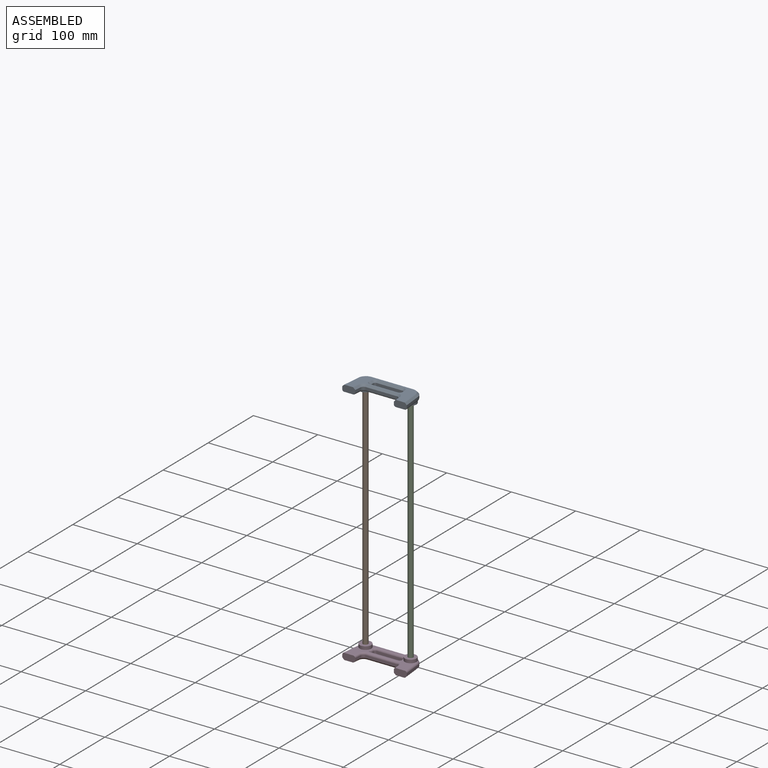
[diagram: assembled view]
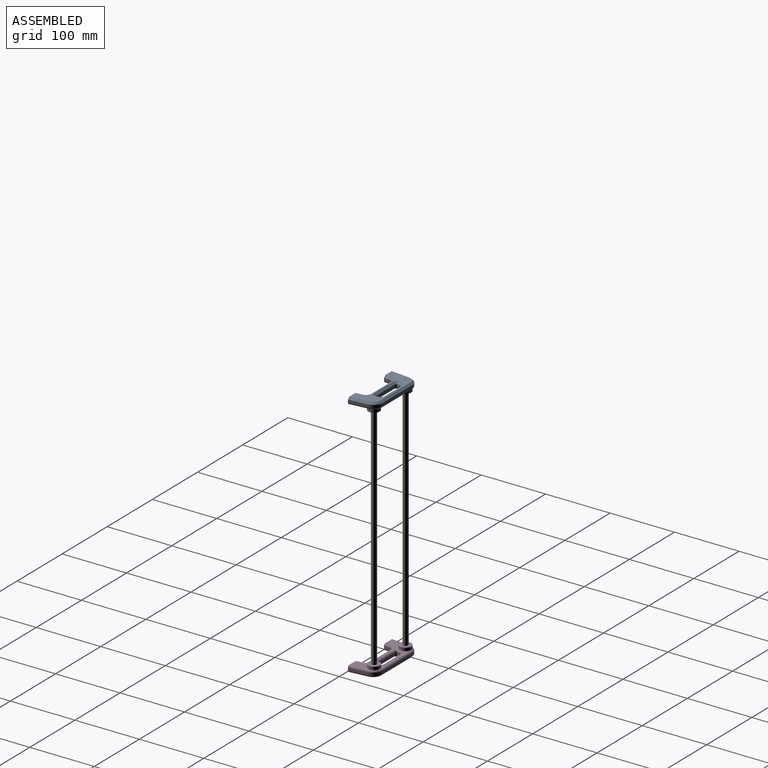
[diagram: assembled view, second angle]
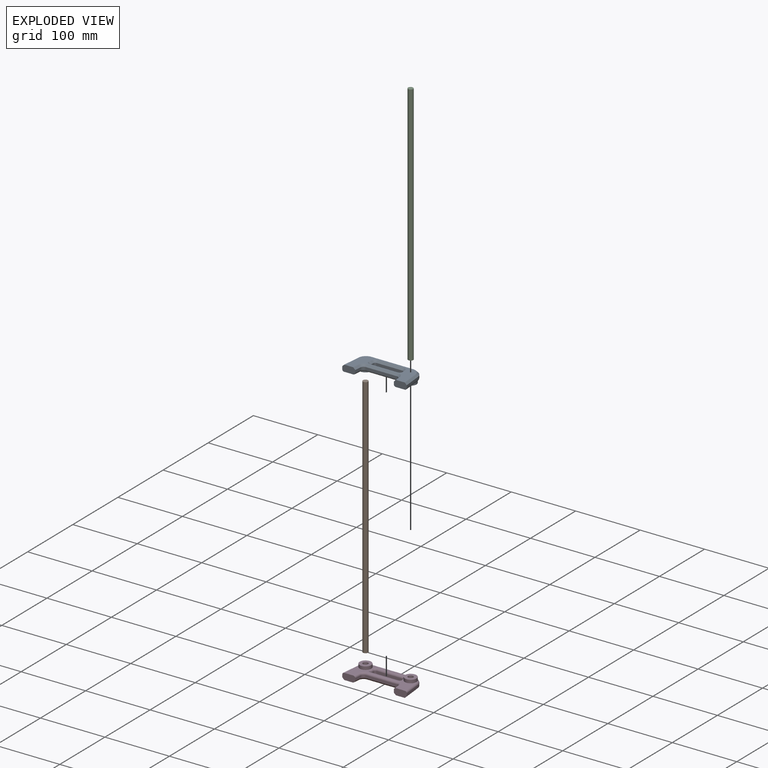
[diagram: exploded view]
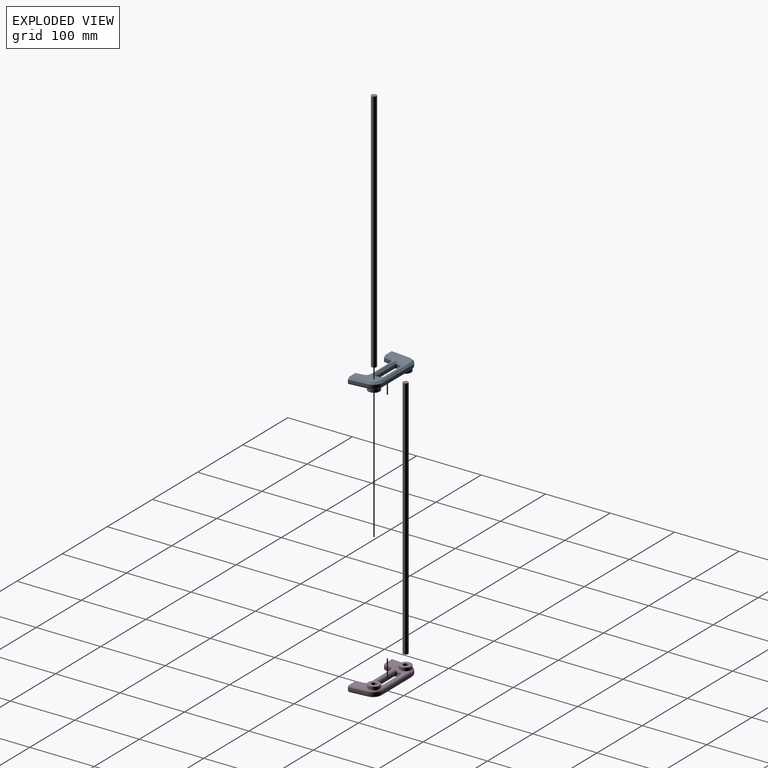
[diagram: exploded view, second angle]
ASSEMBLY  parts=4 mates=3
PART A: 70 faces, bbox 100.1x42.4x15.1 mm
  f0: cylinder r=3mm len=4mm, axis (0,0,-1), area 18.8mm2, adj f1,f21,f31,f53
  f1: plane 39.59x4mm, normal (0,-1,0), area 158.3mm2, adj f0,f2,f30,f52
  f2: cylinder r=3mm len=4mm, axis (0,0,-1), area 18.8mm2, adj f1,f3,f32,f54
  f3: cylinder r=12.21mm len=4.3mm, axis (0,0,-1), area 17.6mm2, adj f2,f4,f34,f56
  f4: cylinder r=2mm len=4mm, axis (0,0,-1), area 15.4mm2, adj f3,f5,f36,f58
  f5: plane 43.4x4mm, normal (0,1,0), area 173.6mm2, adj f4,f6,f37,f59
  f6: cylinder r=2mm len=4mm, axis (0,0,-1), area 15.4mm2, adj f5,f21,f35,f57
  f7: plane 47.99x4mm, normal (0,-1,0), area 192mm2, adj f8,f18,f49,f67
  f8: cylinder r=5mm len=4.98mm, axis (0,0,-1), area 29.5mm2, adj f7,f9,f50,f68
  f9: plane 10.49x4mm, normal (-1,-0.1,0), area 42.2mm2, adj f8,f10,f51,f69
  f10: plane 20.12x10.12mm, normal (0,-1,0), area 187.1mm2, adj f9,f11,f22,f23,f38,f51,f60,f69
  f11: plane 28.46x4mm, normal (1,0.1,0), area 114.4mm2, adj f10,f12,f38,f60
  f12: cylinder r=15mm len=14.93mm, axis (0,0,-1), area 88.4mm2, adj f11,f13,f39,f40,f41,f61
  f13: plane 64.56x4mm, normal (0,1,0), area 258.2mm2, adj f12,f14,f42,f62
  f14: cylinder r=15mm len=14.93mm, axis (0,0,-1), area 88.4mm2, adj f13,f15,f43,f44,f45,f63
  f15: plane 28.46x4mm, normal (-1,0.1,0), area 114.4mm2, adj f14,f16,f46,f64
  f16: plane 20.12x10.12mm, normal (0,-1,0), area 187.1mm2, adj f15,f17,f22,f23,f46,f47,f64,f65
  f17: plane 10.49x4mm, normal (1,-0.1,0), area 42.2mm2, adj f16,f18,f47,f65
  f18: cylinder r=5mm len=4.98mm, axis (0,0,-1), area 29.5mm2, adj f7,f17,f48,f66
  f19: cylinder r=4mm len=12mm, axis (0,0,-1), area 301.6mm2, adj f27,f29
  f20: cylinder r=4mm len=12mm, axis (0,0,-1), area 301.6mm2, adj f25,f28
  f21: cylinder r=12.21mm len=4.3mm, axis (0,0,-1), area 17.6mm2, adj f0,f6,f33,f55
  f22: plane 93.97x39mm, normal (0,0,1), area 1031.5mm2, adj f10,f16,f24,f26,f30,f31,f32,f33
  f23: plane 93.97x39mm, normal (0,0,-1), area 1519.3mm2, adj f10,f16,f52,f53,f54,f55,f56,f57
  f24: cylinder r=9mm len=18mm, axis (0,0,-1), area 282.7mm2, adj f22,f25,f40
  f25: plane 18x18mm, normal (0,0,1), area 204.2mm2, adj f20,f24
  f26: cylinder r=9mm len=18mm, axis (0,0,-1), area 282.7mm2, adj f22,f27,f44
  f27: plane 18x18mm, normal (0,0,1), area 204.2mm2, adj f19,f26
  f28: plane 8x8mm, normal (0,0,1), area 50.3mm2, adj f20
  f29: plane 8x8mm, normal (0,0,1), area 50.3mm2, adj f19
  f30: cylinder r=3mm len=39.59mm, axis (-1,0,0), area 186.5mm2, adj f1,f22,f31,f32
  f31: torus R=6mm, axis (0,0,1), area 30.3mm2, adj f0,f22,f30,f33
  f32: torus R=6mm, axis (0,0,1), area 30.3mm2, adj f2,f22,f30,f34
  f33: torus R=9.21mm, axis (0,0,1), area 18.8mm2, adj f21,f22,f31,f35
  f34: torus R=9.21mm, axis (0,0,1), area 18.8mm2, adj f3,f22,f32,f36
  f35: torus R=5mm, axis (0,0,1), area 28.1mm2, adj f6,f22,f33,f37
  f36: torus R=5mm, axis (0,0,1), area 28.1mm2, adj f4,f22,f34,f37
  f37: cylinder r=3mm len=43.4mm, axis (1,0,0), area 204.5mm2, adj f5,f22,f35,f36
  f38: cylinder r=3mm len=28.76mm, axis (0.1,-1,0), area 134.1mm2, adj f10,f11,f22,f39
  f39: torus R=12mm, axis (0,0,1), area 8mm2, adj f12,f22,f38,f40
  f40: bspline ~13.88x12.78mm, area 69.9mm2, adj f12,f24,f39,f41
  f41: torus R=12mm, axis (0,0,1), area 8mm2, adj f12,f22,f40,f42
  f42: cylinder r=3mm len=64.56mm, axis (1,0,0), area 304.2mm2, adj f13,f22,f41,f43
  f43: torus R=12mm, axis (0,0,1), area 8mm2, adj f14,f22,f42,f44
  f44: bspline ~13.18x12.28mm, area 69.9mm2, adj f14,f26,f43,f45
  f45: torus R=12mm, axis (0,0,1), area 8mm2, adj f14,f22,f44,f46
  f46: cylinder r=3mm len=28.76mm, axis (0.1,1,0), area 134.1mm2, adj f15,f16,f22,f45
  f47: cylinder r=3mm len=11.07mm, axis (-0.1,-1,0), area 50.4mm2, adj f16,f17,f22,f48
  f48: torus R=8mm, axis (0,0,1), area 42.3mm2, adj f18,f22,f47,f49
  f49: cylinder r=3mm len=47.99mm, axis (-1,0,0), area 226.1mm2, adj f7,f22,f48,f50
  f50: torus R=8mm, axis (0,0,1), area 42.3mm2, adj f8,f22,f49,f51
  f51: cylinder r=3mm len=11.07mm, axis (-0.1,1,0), area 50.4mm2, adj f9,f10,f22,f50
  f52: plane 39.59x3mm, normal (0,-0.71,-0.71), area 168mm2, adj f1,f23,f53,f54
  f53: cone r=3mm half-angle=45deg, axis (0,0,-1), area 30mm2, adj f0,f23,f52,f55
  f54: cone r=6mm half-angle=45deg, axis (0,0,-1), area 30mm2, adj f2,f23,f52,f56
  f55: cone r=12.21mm half-angle=45deg, axis (0,0,1), area 16.3mm2, adj f21,f23,f53,f57
  f56: cone r=9.21mm half-angle=45deg, axis (0,0,1), area 16.3mm2, adj f3,f23,f54,f58
  f57: cone r=5mm half-angle=45deg, axis (0,0,-1), area 28.7mm2, adj f6,f23,f55,f59
  f58: cone r=5mm half-angle=45deg, axis (0,0,-1), area 28.7mm2, adj f4,f23,f56,f59
  f59: plane 43.4x3mm, normal (0,0.71,-0.71), area 184.2mm2, adj f5,f23,f57,f58
  f60: plane 28.46x5.78mm, normal (0.7,0.07,-0.71), area 120.7mm2, adj f10,f11,f23,f61
  f61: cone r=15mm half-angle=45deg, axis (0,0,1), area 84.4mm2, adj f12,f23,f60,f62
  f62: plane 64.56x3mm, normal (0,0.71,-0.71), area 273.9mm2, adj f13,f23,f61,f63
  f63: cone r=15mm half-angle=45deg, axis (0,0,1), area 84.4mm2, adj f14,f23,f62,f64
  f64: plane 28.46x5.78mm, normal (-0.7,0.07,-0.71), area 120.7mm2, adj f15,f16,f23,f63
  f65: plane 10.78x4.04mm, normal (0.7,-0.07,-0.71), area 45.3mm2, adj f16,f17,f23,f66
  f66: cone r=8mm half-angle=45deg, axis (0,0,-1), area 40.6mm2, adj f18,f23,f65,f67
  f67: plane 47.99x3mm, normal (0,-0.71,-0.71), area 203.6mm2, adj f7,f23,f66,f68
  f68: cone r=8mm half-angle=45deg, axis (0,0,-1), area 40.6mm2, adj f8,f23,f67,f69
  f69: plane 10.78x4.04mm, normal (-0.7,-0.07,-0.71), area 45.3mm2, adj f9,f10,f23,f68
PART B: 3 faces, bbox 8x8x380 mm
  f0: cylinder r=4mm len=380mm, axis (0,0,-1), area 9550.4mm2, adj f1,f2
  f1: plane 8x8mm, normal (0,0,1), area 50.3mm2, adj f0
  f2: plane 8x8mm, normal (0,0,-1), area 50.3mm2, adj f0
PART C: same geometry as B
PART D: same geometry as A
PLACE A rot(axis=(0,-1,0),180deg) t=(-170.31,-10.72,369.73)mm
PLACE B t=(-205.31,-0.72,-13.27)mm
PLACE C t=(-135.31,-0.72,-13.27)mm
PLACE D t=(-170.31,-10.72,-16.27)mm
MATE fastened A.f3 <-> B.f0  axis (0,0,-1) through (-205.31,-0.72,366.73)mm
MATE fastened D.f19 <-> B.f0  axis (0,0,1) through (-205.31,-0.72,-13.27)mm
MATE fastened D.f3 <-> C.f0  axis (0,0,1) through (-135.31,-0.72,-13.27)mm
